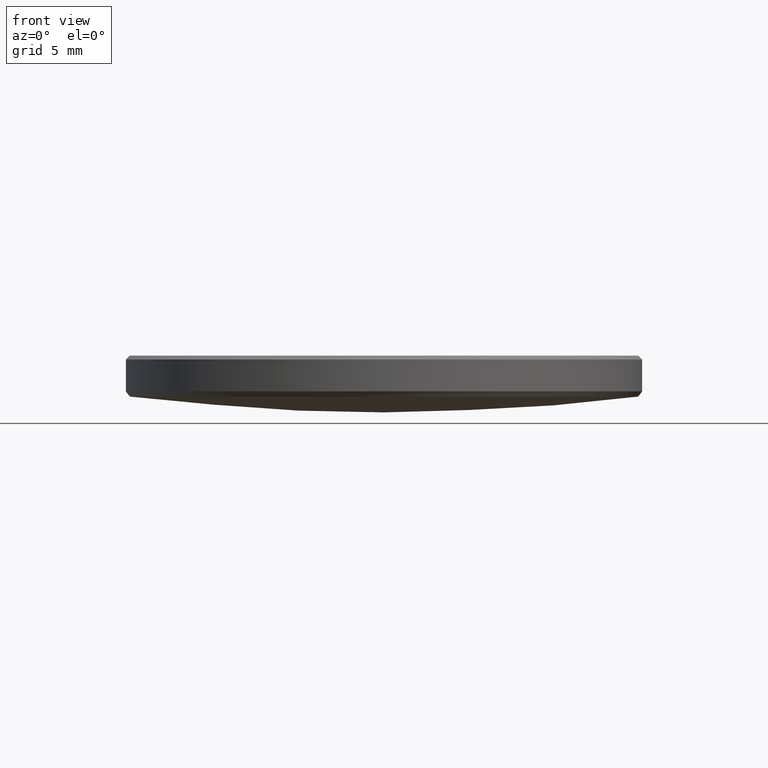
[diagram: clean part render]
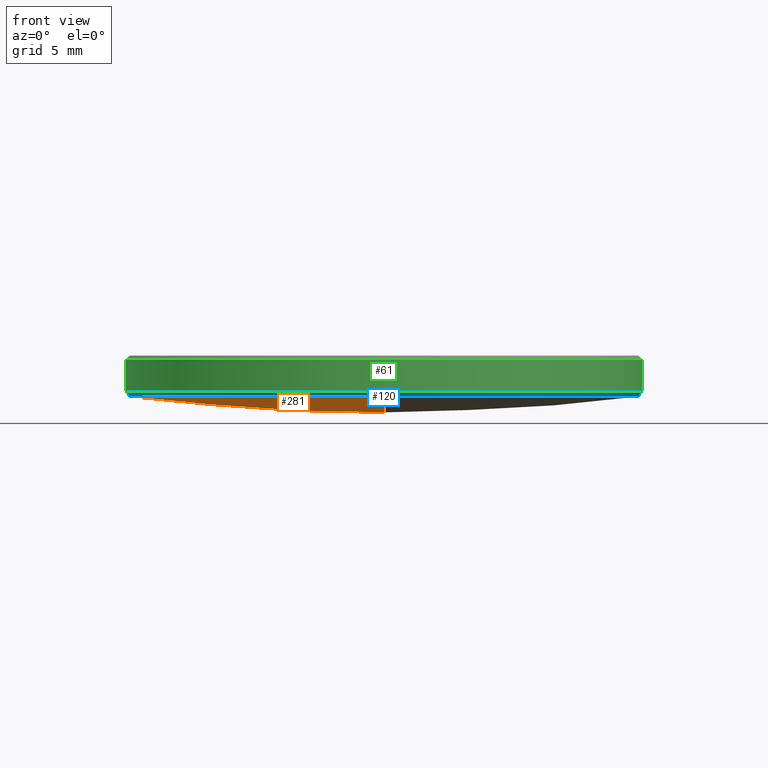
[diagram: same view with three faces highlighted in distinct colors, each labeled with its STEP entity id]
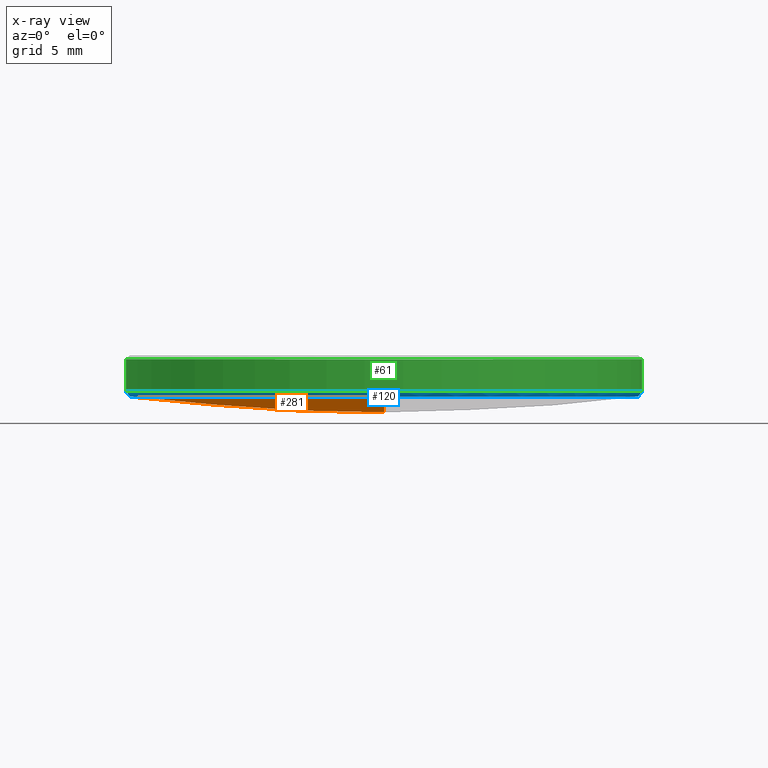
[diagram: x-ray of the same camera — body ghosted, the three highlighted faces saturated]
A machine part, front view with three faces highlighted in distinct colors.
The next image is the same camera in x-ray (body ghosted, the three faces saturated) — at least one of them is partly hidden behind the body in this view.
Their STEP definitions:

[orange] entity #281 — the highlighted spherical surface has radius 100.89 mm.
#10 = DIRECTION ( 'NONE',  ( 0.000000000000000000, 0.000000000000000000, -1.000000000000000000 ) ) ;
#12 = CARTESIAN_POINT ( 'NONE',  ( 0.000000000000000000, 0.000000000000000000, 104.0874722430335027 ) ) ;
#20 = CARTESIAN_POINT ( 'NONE',  ( 0.000000000000000000, 6.177730778298823983E-15, 3.197472243033488759 ) ) ;
#27 = VERTEX_POINT ( 'NONE', #42 ) ;
#28 = DIRECTION ( 'NONE',  ( -1.224646799147353454E-16, -1.000000000000000000, 0.000000000000000000 ) ) ;
#34 = SPHERICAL_SURFACE ( 'NONE', #329, 100.8900000000000006 ) ;
#42 = CARTESIAN_POINT ( 'NONE',  ( -12.50176226215777930, 1.543162874361204192E-15, 3.975045240485544529 ) ) ;
#55 = ORIENTED_EDGE ( 'NONE', *, *, #105, .T. ) ;
#65 = DIRECTION ( 'NONE',  ( 0.000000000000000000, 1.000000000000000000, 0.000000000000000000 ) ) ;
#83 = CIRCLE ( 'NONE', #254, 12.50176226215777930 ) ;
#91 = VERTEX_POINT ( 'NONE', #20 ) ;
#98 = CARTESIAN_POINT ( 'NONE',  ( 0.000000000000000000, 0.000000000000000000, 3.975045240485544529 ) ) ;
#99 = ORIENTED_EDGE ( 'NONE', *, *, #195, .F. ) ;
#105 = EDGE_CURVE ( 'NONE', #210, #27, #83, .T. ) ;
#110 = CARTESIAN_POINT ( 'NONE',  ( 0.000000000000000000, 12.50176226215772068, 3.975045240485544529 ) ) ;
#112 = CARTESIAN_POINT ( 'NONE',  ( -1.531024313805262852E-15, -12.50176226215772068, 3.975045240485544529 ) ) ;
#123 = ORIENTED_EDGE ( 'NONE', *, *, #305, .T. ) ;
#133 = EDGE_CURVE ( 'NONE', #27, #297, #262, .T. ) ;
#170 = DIRECTION ( 'NONE',  ( 1.000000000000000000, 0.000000000000000000, 0.000000000000000000 ) ) ;
#195 = EDGE_CURVE ( 'NONE', #91, #297, #218, .T. ) ;
#200 = CARTESIAN_POINT ( 'NONE',  ( 0.000000000000000000, 0.000000000000000000, 3.975045240485544529 ) ) ;
#207 = CARTESIAN_POINT ( 'NONE',  ( 0.000000000000000000, 0.000000000000000000, 104.0874722430335027 ) ) ;
#210 = VERTEX_POINT ( 'NONE', #112 ) ;
#211 = FACE_OUTER_BOUND ( 'NONE', #311, .T. ) ;
#218 = CIRCLE ( 'NONE', #328, 100.8900000000000006 ) ;
#226 = AXIS2_PLACEMENT_3D ( 'NONE', #98, #323, #326 ) ;
#254 = AXIS2_PLACEMENT_3D ( 'NONE', #200, #295, #170 ) ;
#255 = ORIENTED_EDGE ( 'NONE', *, *, #133, .T. ) ;
#256 = DIRECTION ( 'NONE',  ( -1.000000000000000000, 1.224646799147353207E-16, 0.000000000000000000 ) ) ;
#261 = DIRECTION ( 'NONE',  ( 1.000000000000000000, -0.000000000000000000, 0.000000000000000000 ) ) ;
#262 = CIRCLE ( 'NONE', #226, 12.50176226215777930 ) ;
#275 = CIRCLE ( 'NONE', #308, 100.8900000000000006 ) ;
#281 = ADVANCED_FACE ( 'NONE', ( #211 ), #34, .T. ) ;
#286 = DIRECTION ( 'NONE',  ( -1.000000000000000000, 0.000000000000000000, 0.000000000000000000 ) ) ;
#293 = CARTESIAN_POINT ( 'NONE',  ( 0.000000000000000000, 0.000000000000000000, 104.0874722430335027 ) ) ;
#295 = DIRECTION ( 'NONE',  ( 0.000000000000000000, 0.000000000000000000, -1.000000000000000000 ) ) ;
#297 = VERTEX_POINT ( 'NONE', #110 ) ;
#305 = EDGE_CURVE ( 'NONE', #91, #210, #275, .T. ) ;
#308 = AXIS2_PLACEMENT_3D ( 'NONE', #207, #256, #28 ) ;
#311 = EDGE_LOOP ( 'NONE', ( #99, #123, #55, #255 ) ) ;
#323 = DIRECTION ( 'NONE',  ( 0.000000000000000000, 0.000000000000000000, -1.000000000000000000 ) ) ;
#326 = DIRECTION ( 'NONE',  ( 1.000000000000000000, 0.000000000000000000, 0.000000000000000000 ) ) ;
#328 = AXIS2_PLACEMENT_3D ( 'NONE', #12, #261, #10 ) ;
#329 = AXIS2_PLACEMENT_3D ( 'NONE', #293, #286, #65 ) ;

[blue] entity #120 — the highlighted conical surface has half-angle 37.768 deg.
#5 = VERTEX_POINT ( 'NONE', #322 ) ;
#7 = AXIS2_PLACEMENT_3D ( 'NONE', #175, #145, #268 ) ;
#9 = ORIENTED_EDGE ( 'NONE', *, *, #236, .F. ) ;
#26 = EDGE_CURVE ( 'NONE', #191, #30, #300, .T. ) ;
#27 = VERTEX_POINT ( 'NONE', #42 ) ;
#29 = ORIENTED_EDGE ( 'NONE', *, *, #26, .F. ) ;
#30 = VERTEX_POINT ( 'NONE', #319 ) ;
#36 = CARTESIAN_POINT ( 'NONE',  ( -12.69999999999999929, 1.555301434917138433E-15, 4.230902662384877999 ) ) ;
#38 = ORIENTED_EDGE ( 'NONE', *, *, #105, .F. ) ;
#42 = CARTESIAN_POINT ( 'NONE',  ( -12.50176226215777930, 1.543162874361204192E-15, 3.975045240485544529 ) ) ;
#53 = ORIENTED_EDGE ( 'NONE', *, *, #97, .T. ) ;
#63 = CARTESIAN_POINT ( 'NONE',  ( 0.000000000000000000, 0.000000000000000000, 3.975045240485544529 ) ) ;
#77 = EDGE_CURVE ( 'NONE', #27, #191, #146, .T. ) ;
#80 = AXIS2_PLACEMENT_3D ( 'NONE', #63, #184, #186 ) ;
#83 = CIRCLE ( 'NONE', #254, 12.50176226215777930 ) ;
#87 = CARTESIAN_POINT ( 'NONE',  ( -12.69999999999999929, 0.000000000000000000, 4.230902662384877999 ) ) ;
#97 = EDGE_CURVE ( 'NONE', #5, #30, #106, .T. ) ;
#105 = EDGE_CURVE ( 'NONE', #210, #27, #83, .T. ) ;
#106 = LINE ( 'NONE', #222, #204 ) ;
#112 = CARTESIAN_POINT ( 'NONE',  ( -1.531024313805262852E-15, -12.50176226215772068, 3.975045240485544529 ) ) ;
#120 = ADVANCED_FACE ( 'NONE', ( #197 ), #278, .T. ) ;
#122 = AXIS2_PLACEMENT_3D ( 'NONE', #273, #166, #290 ) ;
#134 = EDGE_LOOP ( 'NONE', ( #294, #38, #9, #53, #29 ) ) ;
#142 = DIRECTION ( 'NONE',  ( -0.6124717436197836262, 7.500615603921663668E-17, 0.7904924814742655403 ) ) ;
#145 = DIRECTION ( 'NONE',  ( -0.000000000000000000, -0.000000000000000000, 1.000000000000000000 ) ) ;
#146 = LINE ( 'NONE', #36, #228 ) ;
#150 = CIRCLE ( 'NONE', #80, 12.50176226215777930 ) ;
#166 = DIRECTION ( 'NONE',  ( -0.000000000000000000, -0.000000000000000000, 1.000000000000000000 ) ) ;
#170 = DIRECTION ( 'NONE',  ( 1.000000000000000000, 0.000000000000000000, 0.000000000000000000 ) ) ;
#175 = CARTESIAN_POINT ( 'NONE',  ( 0.000000000000000000, 0.000000000000000000, 4.230902662384877999 ) ) ;
#184 = DIRECTION ( 'NONE',  ( 0.000000000000000000, 0.000000000000000000, -1.000000000000000000 ) ) ;
#186 = DIRECTION ( 'NONE',  ( 1.000000000000000000, 0.000000000000000000, 0.000000000000000000 ) ) ;
#191 = VERTEX_POINT ( 'NONE', #87 ) ;
#197 = FACE_OUTER_BOUND ( 'NONE', #134, .T. ) ;
#200 = CARTESIAN_POINT ( 'NONE',  ( 0.000000000000000000, 0.000000000000000000, 3.975045240485544529 ) ) ;
#204 = VECTOR ( 'NONE', #223, 1000.000000000000000 ) ;
#210 = VERTEX_POINT ( 'NONE', #112 ) ;
#222 = CARTESIAN_POINT ( 'NONE',  ( 12.69999999999999929, 0.000000000000000000, 4.230902662384877999 ) ) ;
#223 = DIRECTION ( 'NONE',  ( 0.6124717436197836262, 0.000000000000000000, 0.7904924814742655403 ) ) ;
#228 = VECTOR ( 'NONE', #142, 1000.000000000000000 ) ;
#236 = EDGE_CURVE ( 'NONE', #5, #210, #150, .T. ) ;
#254 = AXIS2_PLACEMENT_3D ( 'NONE', #200, #295, #170 ) ;
#268 = DIRECTION ( 'NONE',  ( 1.000000000000000000, 0.000000000000000000, 0.000000000000000000 ) ) ;
#273 = CARTESIAN_POINT ( 'NONE',  ( 0.000000000000000000, 0.000000000000000000, 4.230902662384877999 ) ) ;
#278 = CONICAL_SURFACE ( 'NONE', #7, 12.69999999999999929, 0.6591836576304348494 ) ;
#290 = DIRECTION ( 'NONE',  ( -1.000000000000000000, 0.000000000000000000, 0.000000000000000000 ) ) ;
#294 = ORIENTED_EDGE ( 'NONE', *, *, #77, .F. ) ;
#295 = DIRECTION ( 'NONE',  ( 0.000000000000000000, 0.000000000000000000, -1.000000000000000000 ) ) ;
#300 = CIRCLE ( 'NONE', #122, 12.69999999999999929 ) ;
#319 = CARTESIAN_POINT ( 'NONE',  ( 12.69999999999999929, 1.555301434917138433E-15, 4.230902662384877999 ) ) ;
#322 = CARTESIAN_POINT ( 'NONE',  ( 12.50176226215777930, 0.000000000000000000, 3.975045240485544529 ) ) ;

[green] entity #61 — the highlighted cylindrical surface (partial cylindrical patch) has radius 12.7 mm, axis along (-0, -0, -1).
#1 = VECTOR ( 'NONE', #92, 1000.000000000000000 ) ;
#17 = AXIS2_PLACEMENT_3D ( 'NONE', #60, #94, #266 ) ;
#18 = EDGE_CURVE ( 'NONE', #253, #30, #66, .T. ) ;
#26 = EDGE_CURVE ( 'NONE', #191, #30, #300, .T. ) ;
#30 = VERTEX_POINT ( 'NONE', #319 ) ;
#54 = EDGE_CURVE ( 'NONE', #58, #191, #244, .T. ) ;
#58 = VERTEX_POINT ( 'NONE', #100 ) ;
#60 = CARTESIAN_POINT ( 'NONE',  ( 0.000000000000000000, 0.000000000000000000, 5.800000000000027356 ) ) ;
#61 = ADVANCED_FACE ( 'NONE', ( #217 ), #202, .T. ) ;
#66 = LINE ( 'NONE', #267, #1 ) ;
#73 = DIRECTION ( 'NONE',  ( -0.000000000000000000, -0.000000000000000000, -1.000000000000000000 ) ) ;
#86 = EDGE_LOOP ( 'NONE', ( #111, #257, #235, #164 ) ) ;
#87 = CARTESIAN_POINT ( 'NONE',  ( -12.69999999999999929, 0.000000000000000000, 4.230902662384877999 ) ) ;
#92 = DIRECTION ( 'NONE',  ( -0.000000000000000000, -0.000000000000000000, -1.000000000000000000 ) ) ;
#94 = DIRECTION ( 'NONE',  ( 0.000000000000000000, 0.000000000000000000, -1.000000000000000000 ) ) ;
#100 = CARTESIAN_POINT ( 'NONE',  ( -12.69999999999999929, 0.000000000000000000, 5.800000000000027356 ) ) ;
#103 = CARTESIAN_POINT ( 'NONE',  ( -12.69999999999999929, 0.000000000000000000, 10.00000000000000000 ) ) ;
#111 = ORIENTED_EDGE ( 'NONE', *, *, #18, .F. ) ;
#122 = AXIS2_PLACEMENT_3D ( 'NONE', #273, #166, #290 ) ;
#128 = DIRECTION ( 'NONE',  ( -0.000000000000000000, -0.000000000000000000, -1.000000000000000000 ) ) ;
#161 = AXIS2_PLACEMENT_3D ( 'NONE', #194, #128, #241 ) ;
#164 = ORIENTED_EDGE ( 'NONE', *, *, #26, .T. ) ;
#166 = DIRECTION ( 'NONE',  ( -0.000000000000000000, -0.000000000000000000, 1.000000000000000000 ) ) ;
#191 = VERTEX_POINT ( 'NONE', #87 ) ;
#194 = CARTESIAN_POINT ( 'NONE',  ( 0.000000000000000000, 0.000000000000000000, 10.00000000000000000 ) ) ;
#202 = CYLINDRICAL_SURFACE ( 'NONE', #161, 12.69999999999999929 ) ;
#217 = FACE_OUTER_BOUND ( 'NONE', #86, .T. ) ;
#235 = ORIENTED_EDGE ( 'NONE', *, *, #54, .T. ) ;
#237 = CARTESIAN_POINT ( 'NONE',  ( 12.69999999999999929, 1.555301434917138433E-15, 5.800000000000027356 ) ) ;
#241 = DIRECTION ( 'NONE',  ( -1.000000000000000000, 0.000000000000000000, 0.000000000000000000 ) ) ;
#244 = LINE ( 'NONE', #103, #283 ) ;
#253 = VERTEX_POINT ( 'NONE', #237 ) ;
#257 = ORIENTED_EDGE ( 'NONE', *, *, #269, .T. ) ;
#266 = DIRECTION ( 'NONE',  ( 1.000000000000000000, 0.000000000000000000, 0.000000000000000000 ) ) ;
#267 = CARTESIAN_POINT ( 'NONE',  ( 12.69999999999999929, 1.555301434917138433E-15, 10.00000000000000000 ) ) ;
#269 = EDGE_CURVE ( 'NONE', #253, #58, #301, .T. ) ;
#273 = CARTESIAN_POINT ( 'NONE',  ( 0.000000000000000000, 0.000000000000000000, 4.230902662384877999 ) ) ;
#283 = VECTOR ( 'NONE', #73, 1000.000000000000000 ) ;
#290 = DIRECTION ( 'NONE',  ( -1.000000000000000000, 0.000000000000000000, 0.000000000000000000 ) ) ;
#300 = CIRCLE ( 'NONE', #122, 12.69999999999999929 ) ;
#301 = CIRCLE ( 'NONE', #17, 12.69999999999999929 ) ;
#319 = CARTESIAN_POINT ( 'NONE',  ( 12.69999999999999929, 1.555301434917138433E-15, 4.230902662384877999 ) ) ;